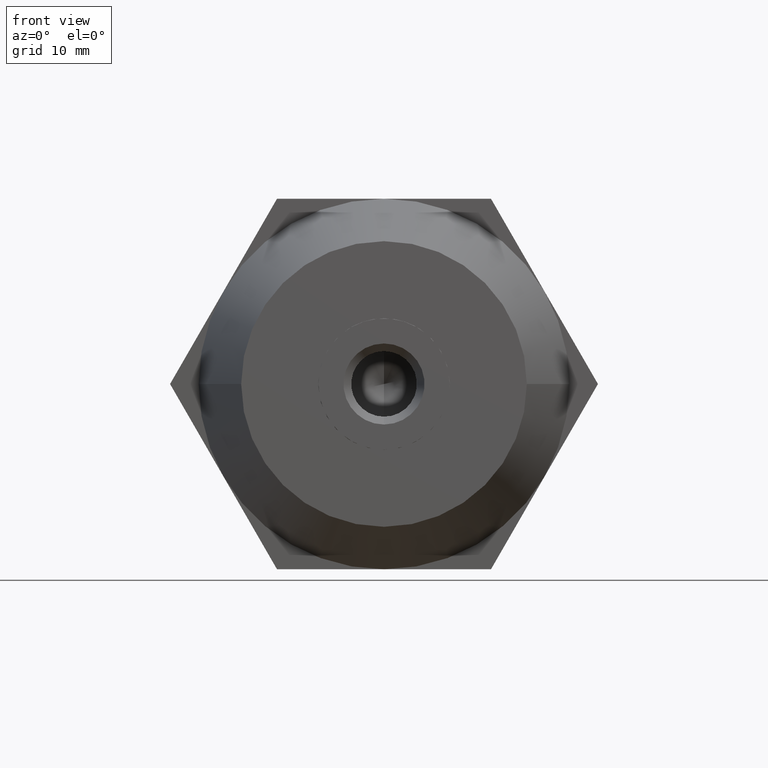
[diagram: clean part render]
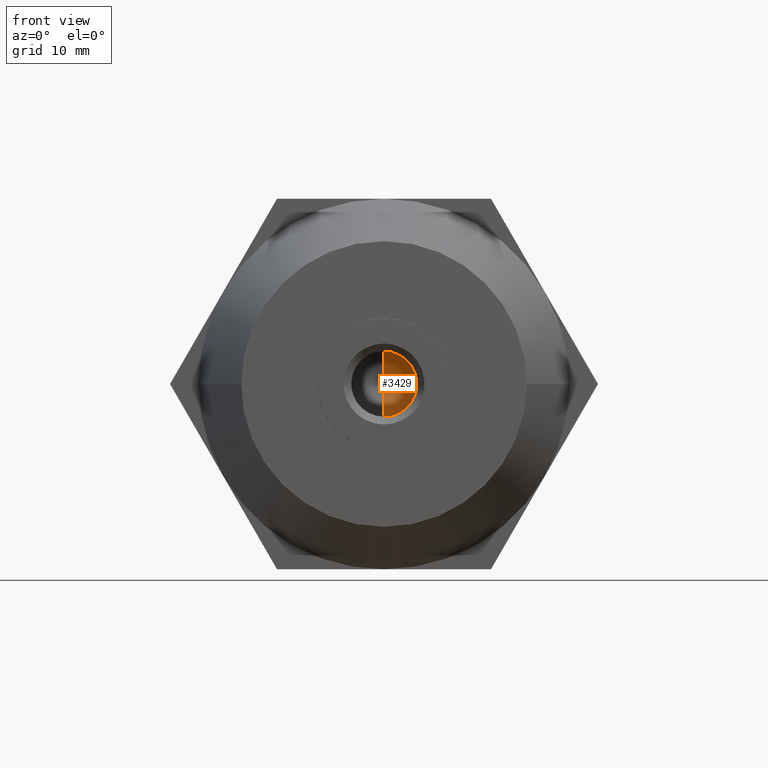
[diagram: same view with one face highlighted and labeled with its STEP entity id]
A machine part, front view. The second image highlights one B-rep face of the part: STEP entity #3429.
In plain terms, the highlighted conical surface has half-angle 59 deg.
Its self-contained STEP definition (entity closure, byte-faithful):
#27 = FACE_OUTER_BOUND ( 'NONE', #1678, .T. ) ;
#70 = AXIS2_PLACEMENT_3D ( 'NONE', #1268, #3708, #3084 ) ;
#370 = VECTOR ( 'NONE', #879, 999.9999999999998900 ) ;
#460 = LINE ( 'NONE', #3311, #370 ) ;
#544 = EDGE_CURVE ( 'NONE', #2590, #3008, #1949, .T. ) ;
#879 = DIRECTION ( 'NONE',  ( 0.0000000000000000000, 0.5150380749100549300, 0.8571673007021118900 ) ) ;
#1097 = EDGE_CURVE ( 'NONE', #2474, #2590, #3336, .T. ) ;
#1114 = ORIENTED_EDGE ( 'NONE', *, *, #544, .T. ) ;
#1116 = CARTESIAN_POINT ( 'NONE',  ( 5.204748896376250700E-016, 3.050000000000000300, -4.250000000000000000 ) ) ;
#1268 = CARTESIAN_POINT ( 'NONE',  ( 0.0000000000000000000, 3.050000000000000300, 0.0000000000000000000 ) ) ;
#1678 = EDGE_LOOP ( 'NONE', ( #3701, #2920, #1114 ) ) ;
#1793 = CONICAL_SURFACE ( 'NONE', #70, 4.250000000000000000, 1.029744258676653600 ) ;
#1949 = CIRCLE ( 'NONE', #3848, 4.250000000000000000 ) ;
#2088 = DIRECTION ( 'NONE',  ( 0.0000000000000000000, 1.000000000000000000, 0.0000000000000000000 ) ) ;
#2474 = VERTEX_POINT ( 'NONE', #2713 ) ;
#2590 = VERTEX_POINT ( 'NONE', #3400 ) ;
#2713 = CARTESIAN_POINT ( 'NONE',  ( -4.042230298373044700E-015, 0.4963423691328700000, 0.0000000000000000000 ) ) ;
#2920 = ORIENTED_EDGE ( 'NONE', *, *, #1097, .T. ) ;
#2936 = DIRECTION ( 'NONE',  ( 1.049727191138618200E-016, 0.5150380749100549300, -0.8571673007021118900 ) ) ;
#2976 = CARTESIAN_POINT ( 'NONE',  ( 0.0000000000000000000, 3.050000000000000300, 4.250000000000000000 ) ) ;
#3008 = VERTEX_POINT ( 'NONE', #2976 ) ;
#3025 = CARTESIAN_POINT ( 'NONE',  ( 0.0000000000000000000, 3.050000000000000300, 0.0000000000000000000 ) ) ;
#3084 = DIRECTION ( 'NONE',  ( 0.0000000000000000000, 0.0000000000000000000, 1.000000000000000000 ) ) ;
#3163 = EDGE_CURVE ( 'NONE', #2474, #3008, #460, .T. ) ;
#3311 = CARTESIAN_POINT ( 'NONE',  ( 0.0000000000000000000, 3.050000000000000300, 4.250000000000000000 ) ) ;
#3336 = LINE ( 'NONE', #1116, #3683 ) ;
#3400 = CARTESIAN_POINT ( 'NONE',  ( 5.204748896376250700E-016, 3.050000000000000300, -4.250000000000000000 ) ) ;
#3429 = ADVANCED_FACE ( 'NONE', ( #27 ), #1793, .F. ) ;
#3683 = VECTOR ( 'NONE', #2936, 999.9999999999998900 ) ;
#3701 = ORIENTED_EDGE ( 'NONE', *, *, #3163, .F. ) ;
#3707 = DIRECTION ( 'NONE',  ( 0.0000000000000000000, 0.0000000000000000000, 1.000000000000000000 ) ) ;
#3708 = DIRECTION ( 'NONE',  ( 0.0000000000000000000, 1.000000000000000000, 0.0000000000000000000 ) ) ;
#3848 = AXIS2_PLACEMENT_3D ( 'NONE', #3025, #2088, #3707 ) ;